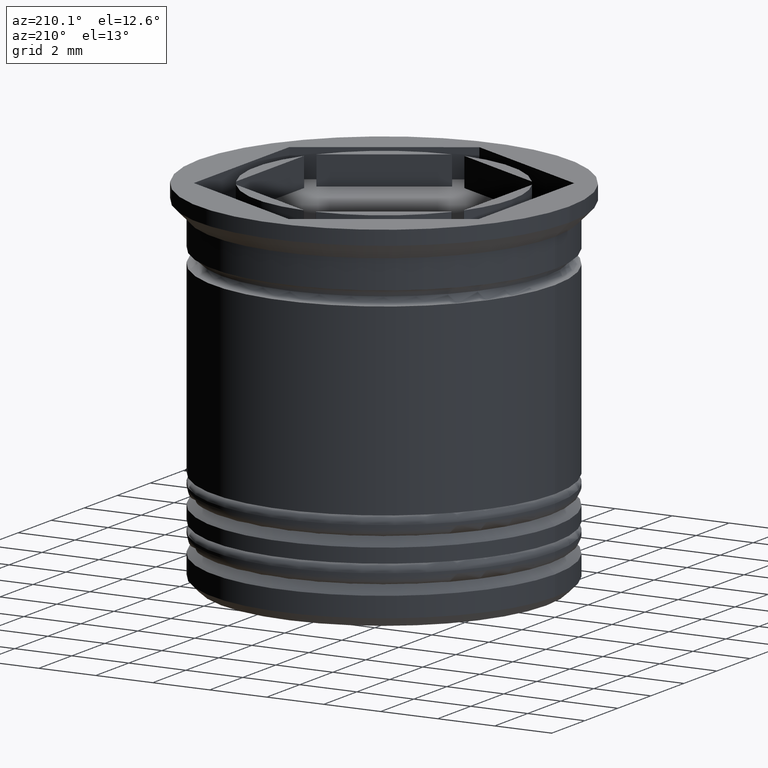
[diagram: clean part render]
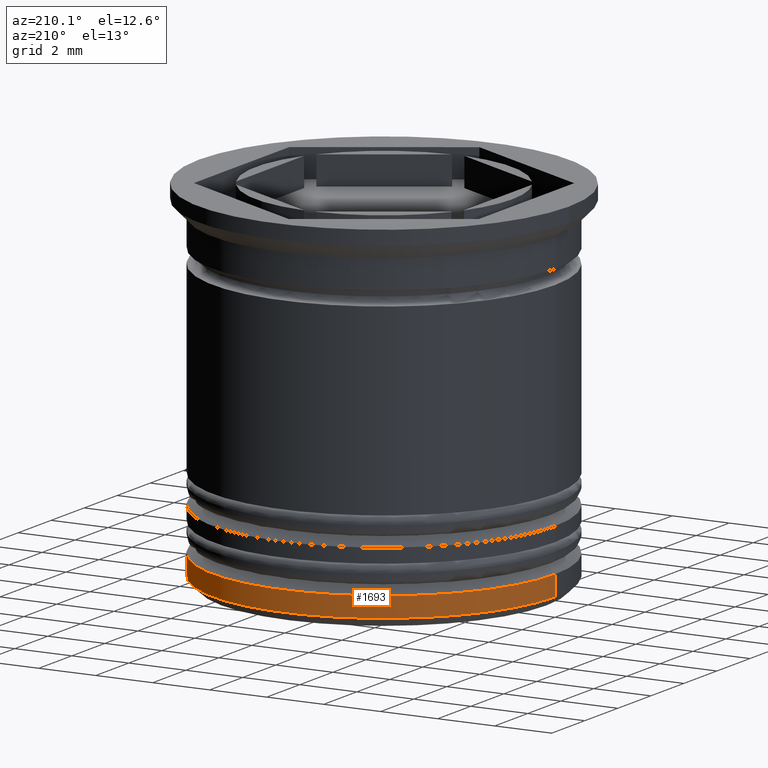
[diagram: same view with one face highlighted and labeled with its STEP entity id]
A machine part, auxiliary view. The second image highlights one B-rep face of the part: STEP entity #1693.
In plain terms, the highlighted cylindrical surface (partial cylindrical patch) has radius 6 mm, axis along (-0, -0, 1).
Its self-contained STEP definition (entity closure, byte-faithful):
#16 = EDGE_CURVE ( 'NONE', #775, #229, #42, .T. ) ;
#17 = CARTESIAN_POINT ( 'NONE',  ( -6.000000000000001776, 7.347880794884121708E-16, -12.19999999999999574 ) ) ;
#42 = CIRCLE ( 'NONE', #1424, 6.000000000000001776 ) ;
#48 = CARTESIAN_POINT ( 'NONE',  ( 0.000000000000000000, 0.000000000000000000, -11.50000000000000533 ) ) ;
#123 = LINE ( 'NONE', #750, #899 ) ;
#203 = AXIS2_PLACEMENT_3D ( 'NONE', #48, #348, #1246 ) ;
#213 = CYLINDRICAL_SURFACE ( 'NONE', #801, 6.000000000000001776 ) ;
#229 = VERTEX_POINT ( 'NONE', #17 ) ;
#234 = ORIENTED_EDGE ( 'NONE', *, *, #240, .T. ) ;
#240 = EDGE_CURVE ( 'NONE', #1090, #1893, #891, .T. ) ;
#281 = CARTESIAN_POINT ( 'NONE',  ( -6.000000000000001776, 7.347880794884121708E-16, 0.000000000000000000 ) ) ;
#348 = DIRECTION ( 'NONE',  ( 0.000000000000000000, 0.000000000000000000, -1.000000000000000000 ) ) ;
#423 = LINE ( 'NONE', #281, #1503 ) ;
#504 = DIRECTION ( 'NONE',  ( 1.000000000000000000, 0.000000000000000000, 0.000000000000000000 ) ) ;
#535 = DIRECTION ( 'NONE',  ( -1.000000000000000000, 0.000000000000000000, 0.000000000000000000 ) ) ;
#602 = ORIENTED_EDGE ( 'NONE', *, *, #971, .T. ) ;
#691 = DIRECTION ( 'NONE',  ( -0.000000000000000000, -0.000000000000000000, 1.000000000000000000 ) ) ;
#750 = CARTESIAN_POINT ( 'NONE',  ( 6.000000000000001776, 0.000000000000000000, 0.000000000000000000 ) ) ;
#775 = VERTEX_POINT ( 'NONE', #1747 ) ;
#801 = AXIS2_PLACEMENT_3D ( 'NONE', #1133, #691, #504 ) ;
#843 = CARTESIAN_POINT ( 'NONE',  ( 0.000000000000000000, 0.000000000000000000, -12.19999999999999574 ) ) ;
#870 = ORIENTED_EDGE ( 'NONE', *, *, #1257, .F. ) ;
#891 = CIRCLE ( 'NONE', #203, 6.000000000000001776 ) ;
#899 = VECTOR ( 'NONE', #1357, 1000.000000000000000 ) ;
#902 = DIRECTION ( 'NONE',  ( -0.000000000000000000, -0.000000000000000000, 1.000000000000000000 ) ) ;
#971 = EDGE_CURVE ( 'NONE', #229, #1090, #423, .T. ) ;
#1090 = VERTEX_POINT ( 'NONE', #1155 ) ;
#1118 = ORIENTED_EDGE ( 'NONE', *, *, #16, .T. ) ;
#1133 = CARTESIAN_POINT ( 'NONE',  ( 0.000000000000000000, 0.000000000000000000, 0.000000000000000000 ) ) ;
#1155 = CARTESIAN_POINT ( 'NONE',  ( -6.000000000000001776, 7.347880794884121708E-16, -11.50000000000000533 ) ) ;
#1246 = DIRECTION ( 'NONE',  ( -1.000000000000000000, 0.000000000000000000, 0.000000000000000000 ) ) ;
#1257 = EDGE_CURVE ( 'NONE', #775, #1893, #123, .T. ) ;
#1303 = DIRECTION ( 'NONE',  ( -0.000000000000000000, -0.000000000000000000, 1.000000000000000000 ) ) ;
#1357 = DIRECTION ( 'NONE',  ( -0.000000000000000000, -0.000000000000000000, 1.000000000000000000 ) ) ;
#1424 = AXIS2_PLACEMENT_3D ( 'NONE', #843, #1303, #535 ) ;
#1503 = VECTOR ( 'NONE', #902, 1000.000000000000000 ) ;
#1693 = ADVANCED_FACE ( 'NONE', ( #1882 ), #213, .T. ) ;
#1747 = CARTESIAN_POINT ( 'NONE',  ( 6.000000000000001776, 0.000000000000000000, -12.19999999999999574 ) ) ;
#1752 = EDGE_LOOP ( 'NONE', ( #1118, #602, #234, #870 ) ) ;
#1882 = FACE_OUTER_BOUND ( 'NONE', #1752, .T. ) ;
#1893 = VERTEX_POINT ( 'NONE', #1923 ) ;
#1923 = CARTESIAN_POINT ( 'NONE',  ( 6.000000000000001776, 0.000000000000000000, -11.50000000000000533 ) ) ;